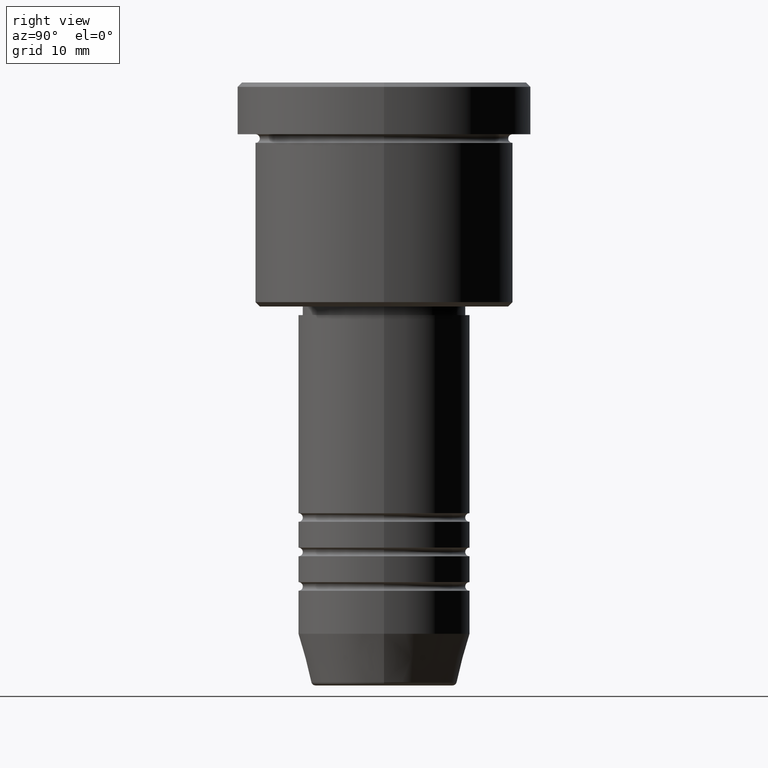
[diagram: clean part render]
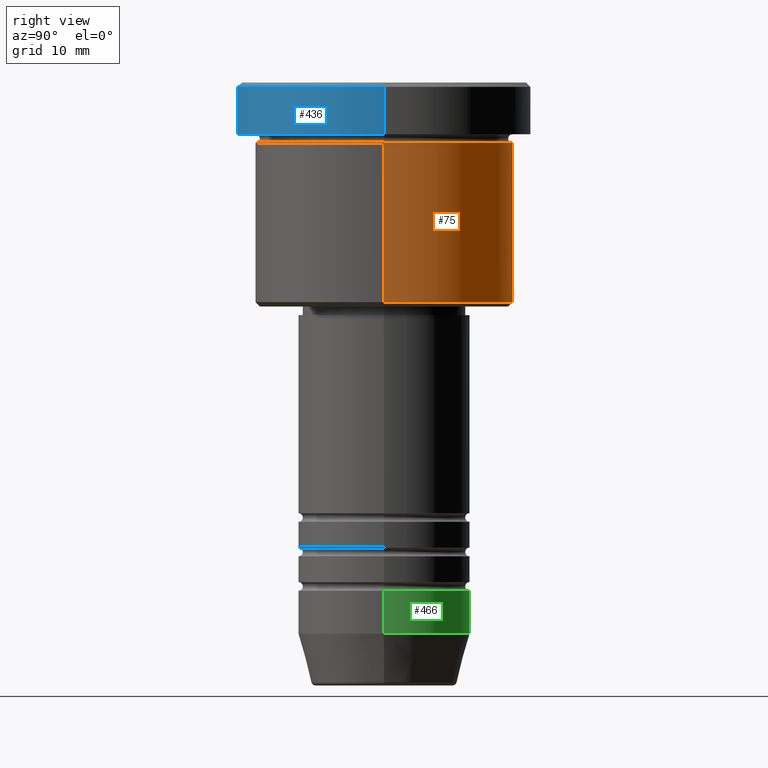
[diagram: same view with three faces highlighted in distinct colors, each labeled with its STEP entity id]
A machine part, right view with three faces highlighted in distinct colors.
Their STEP definitions:

[orange] entity #75 — the highlighted cylindrical surface (partial cylindrical patch) has radius 15 mm, axis along (-0, -0, 1).
#26 = CARTESIAN_POINT ( 'NONE',  ( 0.000000000000000000, 0.000000000000000000, -25.50000000000001421 ) ) ;
#30 = ORIENTED_EDGE ( 'NONE', *, *, #1046, .T. ) ;
#56 = FACE_OUTER_BOUND ( 'NONE', #735, .T. ) ;
#75 = ADVANCED_FACE ( 'NONE', ( #56 ), #422, .T. ) ;
#112 = CARTESIAN_POINT ( 'NONE',  ( -15.00000000000000000, 1.836970198721029589E-15, -6.999999999999995559 ) ) ;
#121 = VECTOR ( 'NONE', #736, 1000.000000000000000 ) ;
#126 = CIRCLE ( 'NONE', #142, 15.00000000000000000 ) ;
#142 = AXIS2_PLACEMENT_3D ( 'NONE', #26, #676, #193 ) ;
#162 = ORIENTED_EDGE ( 'NONE', *, *, #391, .T. ) ;
#193 = DIRECTION ( 'NONE',  ( -1.000000000000000000, 0.000000000000000000, 0.000000000000000000 ) ) ;
#226 = CARTESIAN_POINT ( 'NONE',  ( 15.00000000000000000, 0.000000000000000000, -6.999999999999995559 ) ) ;
#240 = DIRECTION ( 'NONE',  ( 1.000000000000000000, 0.000000000000000000, 0.000000000000000000 ) ) ;
#251 = DIRECTION ( 'NONE',  ( 1.000000000000000000, 0.000000000000000000, 0.000000000000000000 ) ) ;
#253 = AXIS2_PLACEMENT_3D ( 'NONE', #524, #530, #251 ) ;
#281 = LINE ( 'NONE', #1128, #121 ) ;
#313 = CARTESIAN_POINT ( 'NONE',  ( 15.00000000000000000, 0.000000000000000000, -25.50000000000001421 ) ) ;
#391 = EDGE_CURVE ( 'NONE', #1136, #410, #126, .T. ) ;
#410 = VERTEX_POINT ( 'NONE', #1132 ) ;
#414 = CIRCLE ( 'NONE', #253, 15.00000000000000000 ) ;
#417 = EDGE_CURVE ( 'NONE', #1136, #720, #483, .T. ) ;
#422 = CYLINDRICAL_SURFACE ( 'NONE', #1035, 15.00000000000000000 ) ;
#431 = CARTESIAN_POINT ( 'NONE',  ( 0.000000000000000000, 0.000000000000000000, 0.000000000000000000 ) ) ;
#483 = LINE ( 'NONE', #752, #663 ) ;
#488 = DIRECTION ( 'NONE',  ( -0.000000000000000000, -0.000000000000000000, 1.000000000000000000 ) ) ;
#524 = CARTESIAN_POINT ( 'NONE',  ( 0.000000000000000000, 0.000000000000000000, -6.999999999999995559 ) ) ;
#530 = DIRECTION ( 'NONE',  ( -0.000000000000000000, -0.000000000000000000, 1.000000000000000000 ) ) ;
#663 = VECTOR ( 'NONE', #488, 1000.000000000000000 ) ;
#668 = VERTEX_POINT ( 'NONE', #112 ) ;
#676 = DIRECTION ( 'NONE',  ( -0.000000000000000000, -0.000000000000000000, 1.000000000000000000 ) ) ;
#720 = VERTEX_POINT ( 'NONE', #226 ) ;
#735 = EDGE_LOOP ( 'NONE', ( #162, #30, #1111, #870 ) ) ;
#736 = DIRECTION ( 'NONE',  ( -0.000000000000000000, -0.000000000000000000, 1.000000000000000000 ) ) ;
#752 = CARTESIAN_POINT ( 'NONE',  ( 15.00000000000000000, 0.000000000000000000, 0.000000000000000000 ) ) ;
#870 = ORIENTED_EDGE ( 'NONE', *, *, #417, .F. ) ;
#893 = EDGE_CURVE ( 'NONE', #720, #668, #414, .T. ) ;
#898 = DIRECTION ( 'NONE',  ( -0.000000000000000000, -0.000000000000000000, 1.000000000000000000 ) ) ;
#1035 = AXIS2_PLACEMENT_3D ( 'NONE', #431, #898, #240 ) ;
#1046 = EDGE_CURVE ( 'NONE', #410, #668, #281, .T. ) ;
#1111 = ORIENTED_EDGE ( 'NONE', *, *, #893, .F. ) ;
#1128 = CARTESIAN_POINT ( 'NONE',  ( -15.00000000000000000, 1.836970198721029589E-15, 0.000000000000000000 ) ) ;
#1132 = CARTESIAN_POINT ( 'NONE',  ( -15.00000000000000000, 1.836970198721029589E-15, -25.50000000000001421 ) ) ;
#1136 = VERTEX_POINT ( 'NONE', #313 ) ;

[blue] entity #436 — the highlighted cylindrical surface (partial cylindrical patch) has radius 17 mm, axis along (-0, -0, 1).
#23 = VERTEX_POINT ( 'NONE', #698 ) ;
#99 = ORIENTED_EDGE ( 'NONE', *, *, #1112, .T. ) ;
#177 = EDGE_CURVE ( 'NONE', #284, #23, #533, .T. ) ;
#207 = VERTEX_POINT ( 'NONE', #1051 ) ;
#221 = EDGE_LOOP ( 'NONE', ( #575, #1003, #99, #739 ) ) ;
#230 = CARTESIAN_POINT ( 'NONE',  ( 0.000000000000000000, 0.000000000000000000, -5.999999999999994671 ) ) ;
#284 = VERTEX_POINT ( 'NONE', #616 ) ;
#301 = DIRECTION ( 'NONE',  ( -0.000000000000000000, -0.000000000000000000, 1.000000000000000000 ) ) ;
#358 = AXIS2_PLACEMENT_3D ( 'NONE', #1110, #301, #669 ) ;
#360 = VERTEX_POINT ( 'NONE', #855 ) ;
#364 = EDGE_CURVE ( 'NONE', #360, #23, #757, .T. ) ;
#371 = DIRECTION ( 'NONE',  ( 1.000000000000000000, 0.000000000000000000, 0.000000000000000000 ) ) ;
#386 = CARTESIAN_POINT ( 'NONE',  ( -17.00000000000000000, 2.081899558550500280E-15, 0.000000000000000000 ) ) ;
#404 = CARTESIAN_POINT ( 'NONE',  ( 17.00000000000000000, 0.000000000000000000, 0.000000000000000000 ) ) ;
#436 = ADVANCED_FACE ( 'NONE', ( #773 ), #763, .T. ) ;
#475 = AXIS2_PLACEMENT_3D ( 'NONE', #754, #759, #1040 ) ;
#496 = VECTOR ( 'NONE', #1135, 1000.000000000000000 ) ;
#533 = CIRCLE ( 'NONE', #475, 17.00000000000000000 ) ;
#575 = ORIENTED_EDGE ( 'NONE', *, *, #364, .F. ) ;
#616 = CARTESIAN_POINT ( 'NONE',  ( 17.00000000000000000, 0.000000000000000000, -0.5000000000000073275 ) ) ;
#669 = DIRECTION ( 'NONE',  ( 1.000000000000000000, 0.000000000000000000, 0.000000000000000000 ) ) ;
#698 = CARTESIAN_POINT ( 'NONE',  ( -17.00000000000000000, 2.081899558550500280E-15, -0.5000000000000073275 ) ) ;
#739 = ORIENTED_EDGE ( 'NONE', *, *, #177, .T. ) ;
#754 = CARTESIAN_POINT ( 'NONE',  ( 0.000000000000000000, 0.000000000000000000, -0.5000000000000073275 ) ) ;
#757 = LINE ( 'NONE', #386, #1036 ) ;
#759 = DIRECTION ( 'NONE',  ( 0.000000000000000000, 0.000000000000000000, -1.000000000000000000 ) ) ;
#763 = CYLINDRICAL_SURFACE ( 'NONE', #358, 17.00000000000000000 ) ;
#773 = FACE_OUTER_BOUND ( 'NONE', #221, .T. ) ;
#828 = CIRCLE ( 'NONE', #958, 17.00000000000000000 ) ;
#855 = CARTESIAN_POINT ( 'NONE',  ( -17.00000000000000000, 2.081899558550500280E-15, -5.999999999999994671 ) ) ;
#921 = DIRECTION ( 'NONE',  ( -0.000000000000000000, -0.000000000000000000, 1.000000000000000000 ) ) ;
#958 = AXIS2_PLACEMENT_3D ( 'NONE', #230, #921, #371 ) ;
#1003 = ORIENTED_EDGE ( 'NONE', *, *, #1105, .T. ) ;
#1036 = VECTOR ( 'NONE', #1119, 1000.000000000000000 ) ;
#1040 = DIRECTION ( 'NONE',  ( 1.000000000000000000, 0.000000000000000000, 0.000000000000000000 ) ) ;
#1051 = CARTESIAN_POINT ( 'NONE',  ( 17.00000000000000000, 0.000000000000000000, -5.999999999999994671 ) ) ;
#1105 = EDGE_CURVE ( 'NONE', #360, #207, #828, .T. ) ;
#1108 = LINE ( 'NONE', #404, #496 ) ;
#1110 = CARTESIAN_POINT ( 'NONE',  ( 0.000000000000000000, 0.000000000000000000, 0.000000000000000000 ) ) ;
#1112 = EDGE_CURVE ( 'NONE', #207, #284, #1108, .T. ) ;
#1119 = DIRECTION ( 'NONE',  ( -0.000000000000000000, -0.000000000000000000, 1.000000000000000000 ) ) ;
#1135 = DIRECTION ( 'NONE',  ( -0.000000000000000000, -0.000000000000000000, 1.000000000000000000 ) ) ;

[green] entity #466 — the highlighted cylindrical surface (partial cylindrical patch) has radius 10 mm, axis along (-0, -0, 1).
#10 = FACE_OUTER_BOUND ( 'NONE', #213, .T. ) ;
#29 = DIRECTION ( 'NONE',  ( -0.000000000000000000, -0.000000000000000000, 1.000000000000000000 ) ) ;
#58 = ORIENTED_EDGE ( 'NONE', *, *, #122, .T. ) ;
#97 = CARTESIAN_POINT ( 'NONE',  ( -10.00000000000000178, 1.224646799147353454E-15, -64.00000000000000000 ) ) ;
#117 = CYLINDRICAL_SURFACE ( 'NONE', #1147, 10.00000000000000178 ) ;
#122 = EDGE_CURVE ( 'NONE', #556, #1117, #453, .T. ) ;
#164 = ORIENTED_EDGE ( 'NONE', *, *, #403, .F. ) ;
#213 = EDGE_LOOP ( 'NONE', ( #58, #833, #164, #387 ) ) ;
#283 = CARTESIAN_POINT ( 'NONE',  ( -10.00000000000000000, 1.224646799147353256E-15, -59.00000000000000711 ) ) ;
#322 = AXIS2_PLACEMENT_3D ( 'NONE', #731, #633, #1095 ) ;
#381 = CARTESIAN_POINT ( 'NONE',  ( 0.000000000000000000, 0.000000000000000000, -59.00000000000000711 ) ) ;
#387 = ORIENTED_EDGE ( 'NONE', *, *, #738, .F. ) ;
#389 = VERTEX_POINT ( 'NONE', #283 ) ;
#403 = EDGE_CURVE ( 'NONE', #858, #389, #1125, .T. ) ;
#419 = LINE ( 'NONE', #1152, #762 ) ;
#429 = EDGE_CURVE ( 'NONE', #1117, #389, #566, .T. ) ;
#453 = CIRCLE ( 'NONE', #322, 10.00000000000000178 ) ;
#466 = ADVANCED_FACE ( 'NONE', ( #10 ), #117, .T. ) ;
#495 = DIRECTION ( 'NONE',  ( 1.000000000000000000, 0.000000000000000000, 0.000000000000000000 ) ) ;
#512 = DIRECTION ( 'NONE',  ( -0.000000000000000000, -0.000000000000000000, 1.000000000000000000 ) ) ;
#556 = VERTEX_POINT ( 'NONE', #1082 ) ;
#566 = LINE ( 'NONE', #842, #766 ) ;
#620 = CARTESIAN_POINT ( 'NONE',  ( 10.00000000000000000, 0.000000000000000000, -59.00000000000000711 ) ) ;
#633 = DIRECTION ( 'NONE',  ( -0.000000000000000000, -0.000000000000000000, 1.000000000000000000 ) ) ;
#731 = CARTESIAN_POINT ( 'NONE',  ( 0.000000000000000000, 0.000000000000000000, -64.00000000000000000 ) ) ;
#738 = EDGE_CURVE ( 'NONE', #556, #858, #419, .T. ) ;
#745 = DIRECTION ( 'NONE',  ( -0.000000000000000000, -0.000000000000000000, 1.000000000000000000 ) ) ;
#762 = VECTOR ( 'NONE', #512, 1000.000000000000000 ) ;
#766 = VECTOR ( 'NONE', #29, 1000.000000000000000 ) ;
#833 = ORIENTED_EDGE ( 'NONE', *, *, #429, .T. ) ;
#842 = CARTESIAN_POINT ( 'NONE',  ( -10.00000000000000178, 1.224646799147353454E-15, 0.000000000000000000 ) ) ;
#858 = VERTEX_POINT ( 'NONE', #620 ) ;
#948 = DIRECTION ( 'NONE',  ( -0.000000000000000000, -0.000000000000000000, 1.000000000000000000 ) ) ;
#953 = DIRECTION ( 'NONE',  ( 1.000000000000000000, 0.000000000000000000, 0.000000000000000000 ) ) ;
#978 = AXIS2_PLACEMENT_3D ( 'NONE', #381, #948, #953 ) ;
#1050 = CARTESIAN_POINT ( 'NONE',  ( 0.000000000000000000, 0.000000000000000000, 0.000000000000000000 ) ) ;
#1082 = CARTESIAN_POINT ( 'NONE',  ( 10.00000000000000178, 0.000000000000000000, -64.00000000000000000 ) ) ;
#1095 = DIRECTION ( 'NONE',  ( 1.000000000000000000, 0.000000000000000000, 0.000000000000000000 ) ) ;
#1117 = VERTEX_POINT ( 'NONE', #97 ) ;
#1125 = CIRCLE ( 'NONE', #978, 10.00000000000000000 ) ;
#1147 = AXIS2_PLACEMENT_3D ( 'NONE', #1050, #745, #495 ) ;
#1152 = CARTESIAN_POINT ( 'NONE',  ( 10.00000000000000178, 0.000000000000000000, 0.000000000000000000 ) ) ;